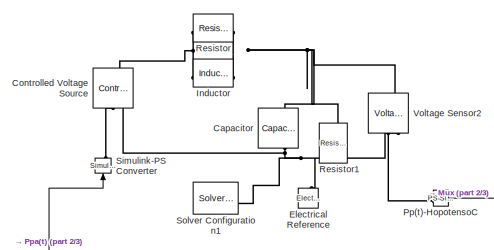
[diagram: root canvas - part 1/3, top center region]
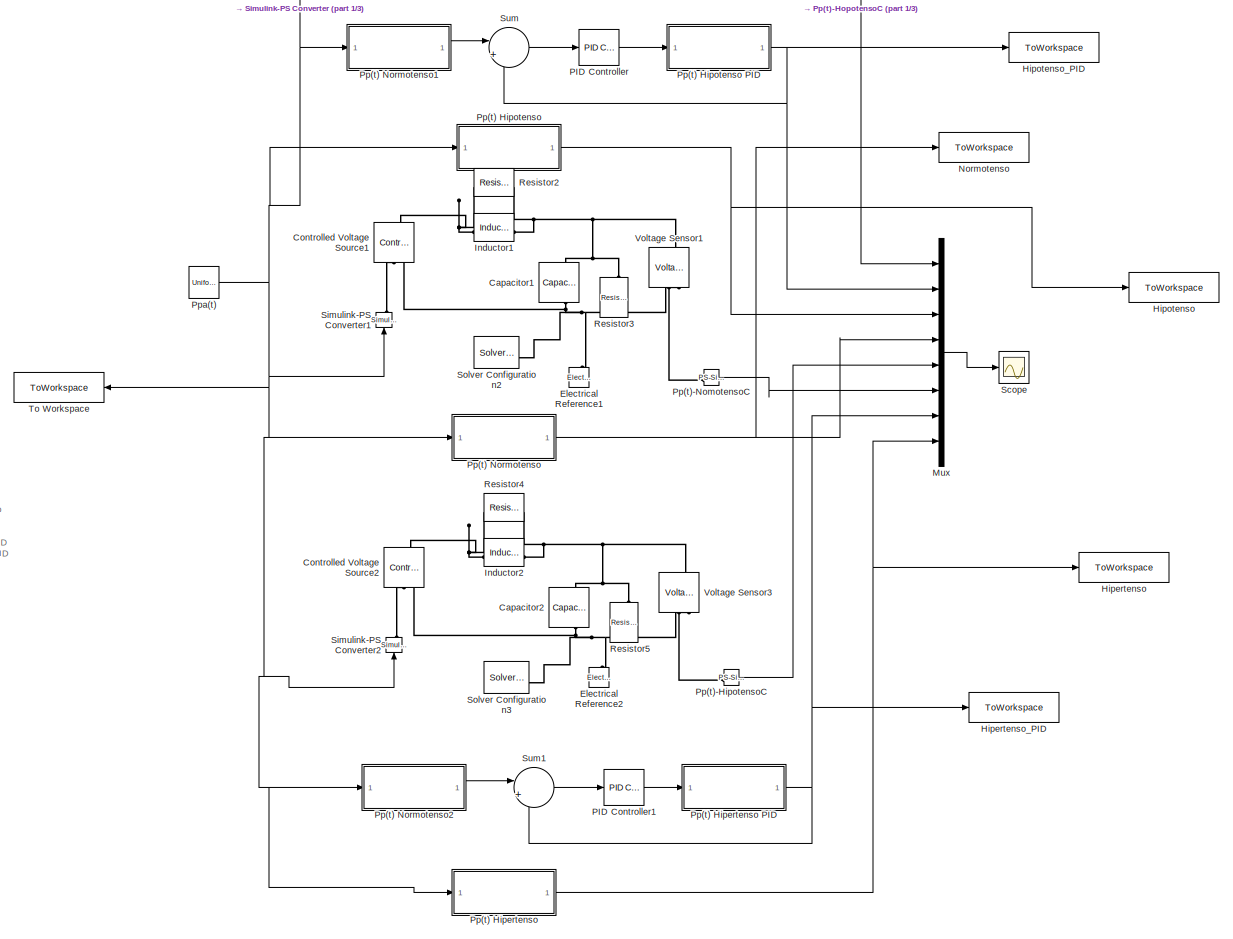
[diagram: root canvas - part 2/3, most of the canvas]
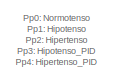
[diagram: root canvas - part 3/3, middle left region]
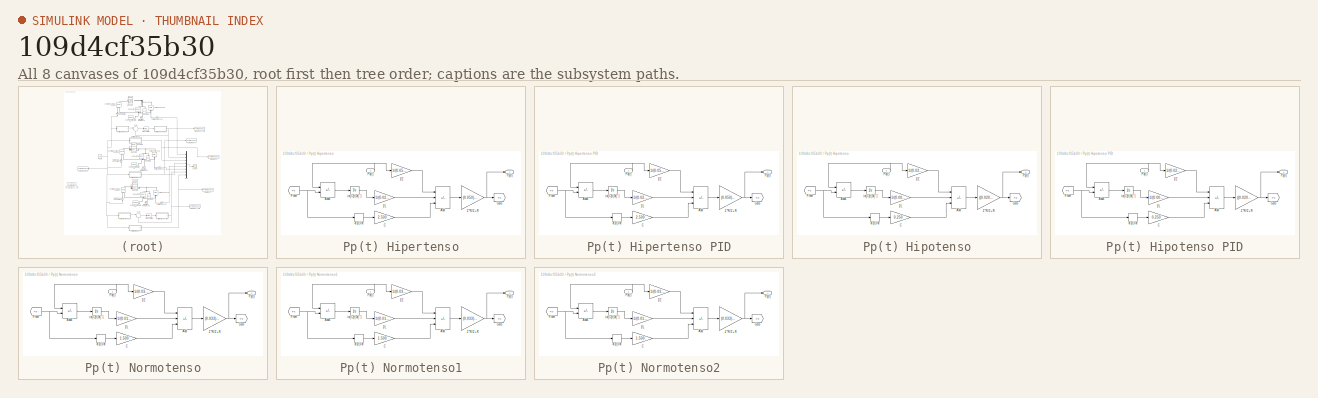
[diagram: thumbnail index - all 8 canvases of the model, root first then tree order]
MODEL slx_109d4cf35b30
KIND model
CONFIG AbsTol = auto
CONFIG EnableMultiTasking = off
CONFIG FixedStep = auto
CONFIG MaxStep = 1E-3
CONFIG MinStep = auto
CONFIG RelTol = 1e-3
CONFIG SampleTimeConstraint = Unconstrained
CONFIG SolverName = ode23t
CONFIG StartTime = 0.0
CONFIG StopTime = 10.0
BLOCK [ToWorkspace]  Hipotenso_PID
  FixptAsFi = on
  MaxDataPoints = inf
  SampleTime = -1
  VariableName = Pp3
BLOCK [Reference] Capacitor  REF=fl_lib/Electrical/Electrical Elements/Capacitor
  NameLocation = left
  SourceBlock = fl_lib/Electrical/Electrical Elements/Capacitor
  SourceType = Capacitor
BLOCK [Reference] Capacitor1  REF=fl_lib/Electrical/Electrical Elements/Capacitor
  NameLocation = left
  SourceBlock = fl_lib/Electrical/Electrical Elements/Capacitor
  SourceType = Capacitor
BLOCK [Reference] Capacitor2  REF=fl_lib/Electrical/Electrical Elements/Capacitor
  NameLocation = left
  SourceBlock = fl_lib/Electrical/Electrical Elements/Capacitor
  SourceType = Capacitor
BLOCK [Reference] Controlled Voltage Source  REF=fl_lib/Electrical/Electrical Sources/Controlled Voltage
Source
  NameLocation = right
  SourceBlock = fl_lib/Electrical/Electrical Sources/Controlled Voltage\nSource
  SourceType = Controlled Voltage\nSource
BLOCK [Reference] Controlled Voltage Source1  REF=fl_lib/Electrical/Electrical Sources/Controlled Voltage
Source
  NameLocation = right
  SourceBlock = fl_lib/Electrical/Electrical Sources/Controlled Voltage\nSource
  SourceType = Controlled Voltage\nSource
BLOCK [Reference] Controlled Voltage Source2  REF=fl_lib/Electrical/Electrical Sources/Controlled Voltage
Source
  NameLocation = right
  SourceBlock = fl_lib/Electrical/Electrical Sources/Controlled Voltage\nSource
  SourceType = Controlled Voltage\nSource
BLOCK [Reference] Electrical Reference  REF=fl_lib/Electrical/Electrical Elements/Electrical Reference
  NameLocation = right
  SourceBlock = fl_lib/Electrical/Electrical Elements/Electrical Reference
  SourceType = Electrical Reference
BLOCK [Reference] Electrical Reference1  REF=fl_lib/Electrical/Electrical Elements/Electrical Reference
  NameLocation = right
  SourceBlock = fl_lib/Electrical/Electrical Elements/Electrical Reference
  SourceType = Electrical Reference
BLOCK [Reference] Electrical Reference2  REF=fl_lib/Electrical/Electrical Elements/Electrical Reference
  NameLocation = right
  SourceBlock = fl_lib/Electrical/Electrical Elements/Electrical Reference
  SourceType = Electrical Reference
BLOCK [ToWorkspace] Hipertenso
  FixptAsFi = on
  MaxDataPoints = inf
  SampleTime = -1
  VariableName = Pp2
BLOCK [ToWorkspace] Hipertenso_PID
  FixptAsFi = on
  MaxDataPoints = inf
  SampleTime = -1
  VariableName = Pp4
BLOCK [ToWorkspace] Hipotenso
  FixptAsFi = on
  MaxDataPoints = inf
  SampleTime = -1
  VariableName = Pp1
BLOCK [Reference] Inductor  REF=fl_lib/Electrical/Electrical Elements/Inductor
  SourceBlock = fl_lib/Electrical/Electrical Elements/Inductor
  SourceType = Inductor
BLOCK [Reference] Inductor1  REF=fl_lib/Electrical/Electrical Elements/Inductor
  SourceBlock = fl_lib/Electrical/Electrical Elements/Inductor
  SourceType = Inductor
BLOCK [Reference] Inductor2  REF=fl_lib/Electrical/Electrical Elements/Inductor
  SourceBlock = fl_lib/Electrical/Electrical Elements/Inductor
  SourceType = Inductor
BLOCK [Mux] Mux
  DisplayOption = bar
  Inputs = 8
BLOCK [ToWorkspace] Normotenso
  FixptAsFi = on
  MaxDataPoints = inf
  SampleTime = -1
  VariableName = Pp0
BLOCK [Reference] PID Controller  REF=slpidlib/PID Controller
  LibrarySourceBlock = simulink/Continuous/PID Controller
  SourceBlock = slpidlib/PID Controller
  SourceType = PID 1dof
BLOCK [Reference] PID Controller1  REF=slpidlib/PID Controller
  LibrarySourceBlock = simulink/Continuous/PID Controller
  SourceBlock = slpidlib/PID Controller
  SourceType = PID 1dof
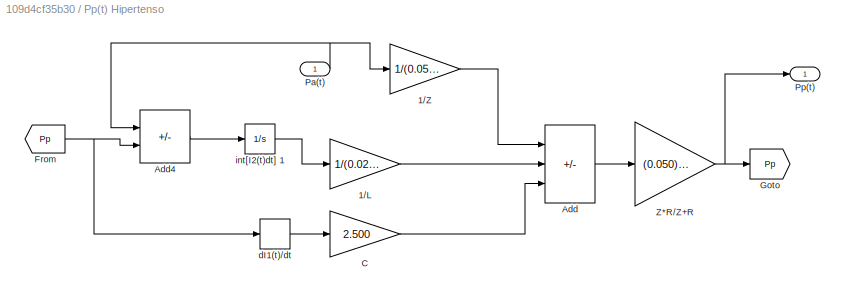
BLOCK [SubSystem] Pp(t) Hipertenso
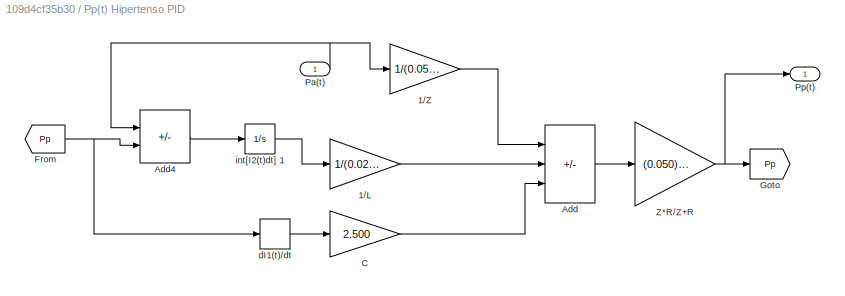
BLOCK [SubSystem] Pp(t) Hipertenso PID
BLOCK [Integrator] Pp(t) Hipertenso PID/  int[I2(t)dt] 1
BLOCK [Gain] Pp(t) Hipertenso PID/1//L
  Gain = 1/(0.020)
BLOCK [Gain] Pp(t) Hipertenso PID/1//Z
  Gain = 1/(0.050)
BLOCK [Sum] Pp(t) Hipertenso PID/Add
  IconShape = rectangular
  Inputs = ++-
BLOCK [Sum] Pp(t) Hipertenso PID/Add4
  IconShape = rectangular
  Inputs = +-
BLOCK [Gain] Pp(t) Hipertenso PID/C
  Gain = 2.500
BLOCK [From] Pp(t) Hipertenso PID/From
  GotoTag = Pp
BLOCK [Goto] Pp(t) Hipertenso PID/Goto
  GotoTag = Pp
BLOCK [Inport] Pp(t) Hipertenso PID/Pa(t)
BLOCK [Outport] Pp(t) Hipertenso PID/Pp(t)
BLOCK [Gain] Pp(t) Hipertenso PID/Z*R//Z+R
  Gain = (0.050)*(1.400)/(0.050+1.400)
BLOCK [Derivative] Pp(t) Hipertenso PID/dI1(t)//dt
BLOCK [Integrator] Pp(t) Hipertenso/  int[I2(t)dt] 1
BLOCK [Gain] Pp(t) Hipertenso/1//L
  Gain = 1/(0.020)
BLOCK [Gain] Pp(t) Hipertenso/1//Z
  Gain = 1/(0.050)
BLOCK [Sum] Pp(t) Hipertenso/Add
  IconShape = rectangular
  Inputs = ++-
BLOCK [Sum] Pp(t) Hipertenso/Add4
  IconShape = rectangular
  Inputs = +-
BLOCK [Gain] Pp(t) Hipertenso/C
  Gain = 2.500
BLOCK [From] Pp(t) Hipertenso/From
  GotoTag = Pp
BLOCK [Goto] Pp(t) Hipertenso/Goto
  GotoTag = Pp
BLOCK [Inport] Pp(t) Hipertenso/Pa(t)
BLOCK [Outport] Pp(t) Hipertenso/Pp(t)
BLOCK [Gain] Pp(t) Hipertenso/Z*R//Z+R
  Gain = (0.050)*(1.400)/(0.050+1.400)
BLOCK [Derivative] Pp(t) Hipertenso/dI1(t)//dt
BLOCK [SubSystem] Pp(t) Hipotenso
BLOCK [SubSystem] Pp(t) Hipotenso PID
BLOCK [Integrator] Pp(t) Hipotenso PID/  int[I2(t)dt] 1
BLOCK [Gain] Pp(t) Hipotenso PID/1//L
  Gain = 1/(0.005)
BLOCK [Gain] Pp(t) Hipotenso PID/1//Z
  Gain = 1/(0.020)
BLOCK [Sum] Pp(t) Hipotenso PID/Add
  IconShape = rectangular
  Inputs = ++-
BLOCK [Sum] Pp(t) Hipotenso PID/Add4
  IconShape = rectangular
  Inputs = +-
BLOCK [Gain] Pp(t) Hipotenso PID/C
  Gain = 0.250
BLOCK [From] Pp(t) Hipotenso PID/From
  GotoTag = Pp
BLOCK [Goto] Pp(t) Hipotenso PID/Goto
  GotoTag = Pp
BLOCK [Inport] Pp(t) Hipotenso PID/Pa(t)
BLOCK [Outport] Pp(t) Hipotenso PID/Pp(t)
BLOCK [Gain] Pp(t) Hipotenso PID/Z*R//Z+R
  Gain = ((0.020)*(0.600))/(0.020+0.600)
BLOCK [Derivative] Pp(t) Hipotenso PID/dI1(t)//dt
BLOCK [Integrator] Pp(t) Hipotenso/  int[I2(t)dt] 1
BLOCK [Gain] Pp(t) Hipotenso/1//L
  Gain = 1/(0.005)
BLOCK [Gain] Pp(t) Hipotenso/1//Z
  Gain = 1/(0.020)
BLOCK [Sum] Pp(t) Hipotenso/Add
  IconShape = rectangular
  Inputs = ++-
BLOCK [Sum] Pp(t) Hipotenso/Add4
  IconShape = rectangular
  Inputs = +-
BLOCK [Gain] Pp(t) Hipotenso/C
  Gain = 0.250
BLOCK [From] Pp(t) Hipotenso/From
  GotoTag = Pp
BLOCK [Goto] Pp(t) Hipotenso/Goto
  GotoTag = Pp
BLOCK [Inport] Pp(t) Hipotenso/Pa(t)
BLOCK [Outport] Pp(t) Hipotenso/Pp(t)
BLOCK [Gain] Pp(t) Hipotenso/Z*R//Z+R
  Gain = ((0.020)*(0.600))/(0.020+0.600)
BLOCK [Derivative] Pp(t) Hipotenso/dI1(t)//dt
BLOCK [SubSystem] Pp(t) Normotenso
BLOCK [Integrator] Pp(t) Normotenso/  int[I2(t)dt] 1
BLOCK [Gain] Pp(t) Normotenso/1//L
  Gain = 1/(0.010)
BLOCK [Gain] Pp(t) Normotenso/1//Z
  Gain = 1/(0.033)
BLOCK [Sum] Pp(t) Normotenso/Add
  IconShape = rectangular
  Inputs = ++-
BLOCK [Sum] Pp(t) Normotenso/Add4
  IconShape = rectangular
  Inputs = +-
BLOCK [Gain] Pp(t) Normotenso/C
  Gain = 1.500
BLOCK [From] Pp(t) Normotenso/From
  GotoTag = Pp
BLOCK [Goto] Pp(t) Normotenso/Goto
  GotoTag = Pp
BLOCK [Inport] Pp(t) Normotenso/Pa(t)
BLOCK [Outport] Pp(t) Normotenso/Pp(t)
BLOCK [Gain] Pp(t) Normotenso/Z*R//Z+R
  Gain = (0.033)*(0.950)/(0.033+0.950)
BLOCK [Derivative] Pp(t) Normotenso/dI1(t)//dt
BLOCK [SubSystem] Pp(t) Normotenso1
BLOCK [Integrator] Pp(t) Normotenso1/  int[I2(t)dt] 1
BLOCK [Gain] Pp(t) Normotenso1/1//L
  Gain = 1/(0.010)
BLOCK [Gain] Pp(t) Normotenso1/1//Z
  Gain = 1/(0.033)
BLOCK [Sum] Pp(t) Normotenso1/Add
  IconShape = rectangular
  Inputs = ++-
BLOCK [Sum] Pp(t) Normotenso1/Add4
  IconShape = rectangular
  Inputs = +-
BLOCK [Gain] Pp(t) Normotenso1/C
  Gain = 1.500
BLOCK [From] Pp(t) Normotenso1/From
  GotoTag = Pp
BLOCK [Goto] Pp(t) Normotenso1/Goto
  GotoTag = Pp
BLOCK [Inport] Pp(t) Normotenso1/Pa(t)
BLOCK [Outport] Pp(t) Normotenso1/Pp(t)
BLOCK [Gain] Pp(t) Normotenso1/Z*R//Z+R
  Gain = (0.033)*(0.950)/(0.033+0.950)
BLOCK [Derivative] Pp(t) Normotenso1/dI1(t)//dt
BLOCK [SubSystem] Pp(t) Normotenso2
BLOCK [Integrator] Pp(t) Normotenso2/  int[I2(t)dt] 1
BLOCK [Gain] Pp(t) Normotenso2/1//L
  Gain = 1/(0.010)
BLOCK [Gain] Pp(t) Normotenso2/1//Z
  Gain = 1/(0.033)
BLOCK [Sum] Pp(t) Normotenso2/Add
  IconShape = rectangular
  Inputs = ++-
BLOCK [Sum] Pp(t) Normotenso2/Add4
  IconShape = rectangular
  Inputs = +-
BLOCK [Gain] Pp(t) Normotenso2/C
  Gain = 1.500
BLOCK [From] Pp(t) Normotenso2/From
  GotoTag = Pp
BLOCK [Goto] Pp(t) Normotenso2/Goto
  GotoTag = Pp
BLOCK [Inport] Pp(t) Normotenso2/Pa(t)
BLOCK [Outport] Pp(t) Normotenso2/Pp(t)
BLOCK [Gain] Pp(t) Normotenso2/Z*R//Z+R
  Gain = (0.033)*(0.950)/(0.033+0.950)
BLOCK [Derivative] Pp(t) Normotenso2/dI1(t)//dt
BLOCK [Reference] Pp(t)-HipotensoC  REF=nesl_utility/PS-Simulink
Converter
  SourceBlock = nesl_utility/PS-Simulink\nConverter
  SourceType = PS-Simulink\nConverter
BLOCK [Reference] Pp(t)-HopotensoC  REF=nesl_utility/PS-Simulink
Converter
  SourceBlock = nesl_utility/PS-Simulink\nConverter
  SourceType = PS-Simulink\nConverter
BLOCK [Reference] Pp(t)-NomotensoC  REF=nesl_utility/PS-Simulink
Converter
  SourceBlock = nesl_utility/PS-Simulink\nConverter
  SourceType = PS-Simulink\nConverter
BLOCK [UniformRandomNumber] Ppa(t)
  Minimum = -0.2
  SampleTime = 0.5
  Seed = 106
BLOCK [Reference] Resistor  REF=fl_lib/Electrical/Electrical Elements/Resistor
  SourceBlock = fl_lib/Electrical/Electrical Elements/Resistor
  SourceType = Resistor
BLOCK [Reference] Resistor1  REF=fl_lib/Electrical/Electrical Elements/Resistor
  NameLocation = left
  SourceBlock = fl_lib/Electrical/Electrical Elements/Resistor
  SourceType = Resistor
BLOCK [Reference] Resistor2  REF=fl_lib/Electrical/Electrical Elements/Resistor
  SourceBlock = fl_lib/Electrical/Electrical Elements/Resistor
  SourceType = Resistor
BLOCK [Reference] Resistor3  REF=fl_lib/Electrical/Electrical Elements/Resistor
  NameLocation = left
  SourceBlock = fl_lib/Electrical/Electrical Elements/Resistor
  SourceType = Resistor
BLOCK [Reference] Resistor4  REF=fl_lib/Electrical/Electrical Elements/Resistor
  SourceBlock = fl_lib/Electrical/Electrical Elements/Resistor
  SourceType = Resistor
BLOCK [Reference] Resistor5  REF=fl_lib/Electrical/Electrical Elements/Resistor
  NameLocation = left
  SourceBlock = fl_lib/Electrical/Electrical Elements/Resistor
  SourceType = Resistor
BLOCK [Scope] Scope
  Floating = off
  NumInputPorts = 1
  ScopeSpecificationString = Simulink.scopes.TimeScopeBlockCfg('CurrentConfiguration', extmgr.ConfigurationSet(extmgr.Configuration('Core','General UI',true,'FigureColor',[1 1 1]),extmgr.Configuration('Core','Source UI',true),extmgr.Configuration('Sources','WiredSimulink',true),extmgr.Configuration('Visuals','Time Domain',true,'SerializedDisplays',{struct('MinYLimReal','-0.4','MaxYLimReal','1.125','YLabelReal','','MinYLimMag'...<+2623ch>
BLOCK [Reference] Simulink-PS Converter  REF=nesl_utility/Simulink-PS
Converter
  NameLocation = right
  SourceBlock = nesl_utility/Simulink-PS\nConverter
  SourceType = Simulink-PS\nConverter
BLOCK [Reference] Simulink-PS Converter1  REF=nesl_utility/Simulink-PS
Converter
  NameLocation = right
  SourceBlock = nesl_utility/Simulink-PS\nConverter
  SourceType = Simulink-PS\nConverter
BLOCK [Reference] Simulink-PS Converter2  REF=nesl_utility/Simulink-PS
Converter
  NameLocation = right
  SourceBlock = nesl_utility/Simulink-PS\nConverter
  SourceType = Simulink-PS\nConverter
BLOCK [Reference] Solver Configuration1  REF=nesl_utility/Solver
Configuration
  SourceBlock = nesl_utility/Solver\nConfiguration
  SourceType = Solver\nConfiguration
BLOCK [Reference] Solver Configuration2  REF=nesl_utility/Solver
Configuration
  SourceBlock = nesl_utility/Solver\nConfiguration
  SourceType = Solver\nConfiguration
BLOCK [Reference] Solver Configuration3  REF=nesl_utility/Solver
Configuration
  SourceBlock = nesl_utility/Solver\nConfiguration
  SourceType = Solver\nConfiguration
BLOCK [Sum] Sum
  Inputs = |+-
BLOCK [Sum] Sum1
  Inputs = |+-
BLOCK [ToWorkspace] To Workspace
  FixptAsFi = on
  MaxDataPoints = inf
  SampleTime = -1
  VariableName = Ppa
BLOCK [Reference] Voltage Sensor1  REF=fl_lib/Electrical/Electrical Sensors/Voltage Sensor
  NameLocation = right
  SourceBlock = fl_lib/Electrical/Electrical Sensors/Voltage Sensor
  SourceType = Voltage Sensor
BLOCK [Reference] Voltage Sensor2  REF=fl_lib/Electrical/Electrical Sensors/Voltage Sensor
  NameLocation = right
  SourceBlock = fl_lib/Electrical/Electrical Sensors/Voltage Sensor
  SourceType = Voltage Sensor
BLOCK [Reference] Voltage Sensor3  REF=fl_lib/Electrical/Electrical Sensors/Voltage Sensor
  NameLocation = right
  SourceBlock = fl_lib/Electrical/Electrical Sensors/Voltage Sensor
  SourceType = Voltage Sensor
ANNOTATION (root): Pp0: Normotenso Pp1: Hipotenso Pp2: Hipertenso Pp3: Hipotenso_PID Pp4: Hipertenso_PID
LINE Mux:1 -> Scope:1
LINE PID Controller1:1 -> Pp(t) Hipertenso PID:1
LINE PID Controller:1 -> Pp(t) Hipotenso PID:1
LINE Pp(t) Hipertenso PID/  int[I2(t)dt] 1:1 -> Pp(t) Hipertenso PID/1//L:1
LINE Pp(t) Hipertenso PID/1//L:1 -> Pp(t) Hipertenso PID/Add:2
LINE Pp(t) Hipertenso PID/1//Z:1 -> Pp(t) Hipertenso PID/Add:1
LINE Pp(t) Hipertenso PID/Add4:1 -> Pp(t) Hipertenso PID/  int[I2(t)dt] 1:1
LINE Pp(t) Hipertenso PID/Add:1 -> Pp(t) Hipertenso PID/Z*R//Z+R:1
LINE Pp(t) Hipertenso PID/C:1 -> Pp(t) Hipertenso PID/Add:3
NET Pp(t) Hipertenso PID/From:1 -> Pp(t) Hipertenso PID/Add4:2, Pp(t) Hipertenso PID/dI1(t)//dt:1
NET Pp(t) Hipertenso PID/Pa(t):1 -> Pp(t) Hipertenso PID/1//Z:1, Pp(t) Hipertenso PID/Add4:1
NET Pp(t) Hipertenso PID/Z*R//Z+R:1 -> Pp(t) Hipertenso PID/Goto:1, Pp(t) Hipertenso PID/Pp(t):1
LINE Pp(t) Hipertenso PID/dI1(t)//dt:1 -> Pp(t) Hipertenso PID/C:1
NET Pp(t) Hipertenso PID:1 -> Hipertenso_PID:1, Mux:7, Sum1:2
LINE Pp(t) Hipertenso/  int[I2(t)dt] 1:1 -> Pp(t) Hipertenso/1//L:1
LINE Pp(t) Hipertenso/1//L:1 -> Pp(t) Hipertenso/Add:2
LINE Pp(t) Hipertenso/1//Z:1 -> Pp(t) Hipertenso/Add:1
LINE Pp(t) Hipertenso/Add4:1 -> Pp(t) Hipertenso/  int[I2(t)dt] 1:1
LINE Pp(t) Hipertenso/Add:1 -> Pp(t) Hipertenso/Z*R//Z+R:1
LINE Pp(t) Hipertenso/C:1 -> Pp(t) Hipertenso/Add:3
NET Pp(t) Hipertenso/From:1 -> Pp(t) Hipertenso/Add4:2, Pp(t) Hipertenso/dI1(t)//dt:1
NET Pp(t) Hipertenso/Pa(t):1 -> Pp(t) Hipertenso/1//Z:1, Pp(t) Hipertenso/Add4:1
NET Pp(t) Hipertenso/Z*R//Z+R:1 -> Pp(t) Hipertenso/Goto:1, Pp(t) Hipertenso/Pp(t):1
LINE Pp(t) Hipertenso/dI1(t)//dt:1 -> Pp(t) Hipertenso/C:1
NET Pp(t) Hipertenso:1 -> Hipertenso:1, Mux:8
LINE Pp(t) Hipotenso PID/  int[I2(t)dt] 1:1 -> Pp(t) Hipotenso PID/1//L:1
LINE Pp(t) Hipotenso PID/1//L:1 -> Pp(t) Hipotenso PID/Add:2
LINE Pp(t) Hipotenso PID/1//Z:1 -> Pp(t) Hipotenso PID/Add:1
LINE Pp(t) Hipotenso PID/Add4:1 -> Pp(t) Hipotenso PID/  int[I2(t)dt] 1:1
LINE Pp(t) Hipotenso PID/Add:1 -> Pp(t) Hipotenso PID/Z*R//Z+R:1
LINE Pp(t) Hipotenso PID/C:1 -> Pp(t) Hipotenso PID/Add:3
NET Pp(t) Hipotenso PID/From:1 -> Pp(t) Hipotenso PID/Add4:2, Pp(t) Hipotenso PID/dI1(t)//dt:1
NET Pp(t) Hipotenso PID/Pa(t):1 -> Pp(t) Hipotenso PID/1//Z:1, Pp(t) Hipotenso PID/Add4:1
NET Pp(t) Hipotenso PID/Z*R//Z+R:1 -> Pp(t) Hipotenso PID/Goto:1, Pp(t) Hipotenso PID/Pp(t):1
LINE Pp(t) Hipotenso PID/dI1(t)//dt:1 -> Pp(t) Hipotenso PID/C:1
NET Pp(t) Hipotenso PID:1 ->  Hipotenso_PID:1, Mux:2, Sum:2
LINE Pp(t) Hipotenso/  int[I2(t)dt] 1:1 -> Pp(t) Hipotenso/1//L:1
LINE Pp(t) Hipotenso/1//L:1 -> Pp(t) Hipotenso/Add:2
LINE Pp(t) Hipotenso/1//Z:1 -> Pp(t) Hipotenso/Add:1
LINE Pp(t) Hipotenso/Add4:1 -> Pp(t) Hipotenso/  int[I2(t)dt] 1:1
LINE Pp(t) Hipotenso/Add:1 -> Pp(t) Hipotenso/Z*R//Z+R:1
LINE Pp(t) Hipotenso/C:1 -> Pp(t) Hipotenso/Add:3
NET Pp(t) Hipotenso/From:1 -> Pp(t) Hipotenso/Add4:2, Pp(t) Hipotenso/dI1(t)//dt:1
NET Pp(t) Hipotenso/Pa(t):1 -> Pp(t) Hipotenso/1//Z:1, Pp(t) Hipotenso/Add4:1
NET Pp(t) Hipotenso/Z*R//Z+R:1 -> Pp(t) Hipotenso/Goto:1, Pp(t) Hipotenso/Pp(t):1
LINE Pp(t) Hipotenso/dI1(t)//dt:1 -> Pp(t) Hipotenso/C:1
NET Pp(t) Hipotenso:1 -> Hipotenso:1, Mux:3
LINE Pp(t) Normotenso/  int[I2(t)dt] 1:1 -> Pp(t) Normotenso/1//L:1
LINE Pp(t) Normotenso/1//L:1 -> Pp(t) Normotenso/Add:2
LINE Pp(t) Normotenso/1//Z:1 -> Pp(t) Normotenso/Add:1
LINE Pp(t) Normotenso/Add4:1 -> Pp(t) Normotenso/  int[I2(t)dt] 1:1
LINE Pp(t) Normotenso/Add:1 -> Pp(t) Normotenso/Z*R//Z+R:1
LINE Pp(t) Normotenso/C:1 -> Pp(t) Normotenso/Add:3
NET Pp(t) Normotenso/From:1 -> Pp(t) Normotenso/Add4:2, Pp(t) Normotenso/dI1(t)//dt:1
NET Pp(t) Normotenso/Pa(t):1 -> Pp(t) Normotenso/1//Z:1, Pp(t) Normotenso/Add4:1
NET Pp(t) Normotenso/Z*R//Z+R:1 -> Pp(t) Normotenso/Goto:1, Pp(t) Normotenso/Pp(t):1
LINE Pp(t) Normotenso/dI1(t)//dt:1 -> Pp(t) Normotenso/C:1
LINE Pp(t) Normotenso1/  int[I2(t)dt] 1:1 -> Pp(t) Normotenso1/1//L:1
LINE Pp(t) Normotenso1/1//L:1 -> Pp(t) Normotenso1/Add:2
LINE Pp(t) Normotenso1/1//Z:1 -> Pp(t) Normotenso1/Add:1
LINE Pp(t) Normotenso1/Add4:1 -> Pp(t) Normotenso1/  int[I2(t)dt] 1:1
LINE Pp(t) Normotenso1/Add:1 -> Pp(t) Normotenso1/Z*R//Z+R:1
LINE Pp(t) Normotenso1/C:1 -> Pp(t) Normotenso1/Add:3
NET Pp(t) Normotenso1/From:1 -> Pp(t) Normotenso1/Add4:2, Pp(t) Normotenso1/dI1(t)//dt:1
NET Pp(t) Normotenso1/Pa(t):1 -> Pp(t) Normotenso1/1//Z:1, Pp(t) Normotenso1/Add4:1
NET Pp(t) Normotenso1/Z*R//Z+R:1 -> Pp(t) Normotenso1/Goto:1, Pp(t) Normotenso1/Pp(t):1
LINE Pp(t) Normotenso1/dI1(t)//dt:1 -> Pp(t) Normotenso1/C:1
LINE Pp(t) Normotenso1:1 -> Sum:1
LINE Pp(t) Normotenso2/  int[I2(t)dt] 1:1 -> Pp(t) Normotenso2/1//L:1
LINE Pp(t) Normotenso2/1//L:1 -> Pp(t) Normotenso2/Add:2
LINE Pp(t) Normotenso2/1//Z:1 -> Pp(t) Normotenso2/Add:1
LINE Pp(t) Normotenso2/Add4:1 -> Pp(t) Normotenso2/  int[I2(t)dt] 1:1
LINE Pp(t) Normotenso2/Add:1 -> Pp(t) Normotenso2/Z*R//Z+R:1
LINE Pp(t) Normotenso2/C:1 -> Pp(t) Normotenso2/Add:3
NET Pp(t) Normotenso2/From:1 -> Pp(t) Normotenso2/Add4:2, Pp(t) Normotenso2/dI1(t)//dt:1
NET Pp(t) Normotenso2/Pa(t):1 -> Pp(t) Normotenso2/1//Z:1, Pp(t) Normotenso2/Add4:1
NET Pp(t) Normotenso2/Z*R//Z+R:1 -> Pp(t) Normotenso2/Goto:1, Pp(t) Normotenso2/Pp(t):1
LINE Pp(t) Normotenso2/dI1(t)//dt:1 -> Pp(t) Normotenso2/C:1
LINE Pp(t) Normotenso2:1 -> Sum1:1
NET Pp(t) Normotenso:1 -> Mux:4, Normotenso:1
LINE Pp(t)-HipotensoC:1 -> Mux:5
LINE Pp(t)-HopotensoC:1 -> Mux:1
LINE Pp(t)-NomotensoC:1 -> Mux:6
NET Ppa(t):1 -> Pp(t) Hipertenso:1, Pp(t) Hipotenso:1, Pp(t) Normotenso1:1, Pp(t) Normotenso2:1, Pp(t) Normotenso:1, Simulink-PS Converter1:1, Simulink-PS Converter2:1, Simulink-PS Converter:1, To Workspace:1
LINE Sum1:1 -> PID Controller1:1
LINE Sum:1 -> PID Controller:1
PNET net1: Capacitor1:LConn1 -- Inductor1:RConn1 -- Resistor2:RConn1 -- Resistor3:LConn1 -- Voltage Sensor1:LConn1
PNET net2: Capacitor1:RConn1 -- Controlled Voltage Source1:RConn2 -- Electrical Reference1:LConn1 -- Resistor3:RConn1 -- Solver Configuration2:RConn1 -- Voltage Sensor1:RConn2
PNET net3: Capacitor2:LConn1 -- Inductor2:RConn1 -- Resistor4:RConn1 -- Resistor5:LConn1 -- Voltage Sensor3:LConn1
PNET net4: Capacitor2:RConn1 -- Controlled Voltage Source2:RConn2 -- Electrical Reference2:LConn1 -- Resistor5:RConn1 -- Solver Configuration3:RConn1 -- Voltage Sensor3:RConn2
PNET net5: Capacitor:LConn1 -- Inductor:RConn1 -- Resistor1:LConn1 -- Resistor:RConn1 -- Voltage Sensor2:LConn1
PNET net6: Capacitor:RConn1 -- Controlled Voltage Source:RConn2 -- Electrical Reference:LConn1 -- Resistor1:RConn1 -- Solver Configuration1:RConn1 -- Voltage Sensor2:RConn2
PNET net7: Controlled Voltage Source1:LConn1 -- Inductor1:LConn1 -- Resistor2:LConn1
PLINE Controlled Voltage Source1:RConn1 -- Simulink-PS Converter1:RConn1
PNET net8: Controlled Voltage Source2:LConn1 -- Inductor2:LConn1 -- Resistor4:LConn1
PLINE Controlled Voltage Source2:RConn1 -- Simulink-PS Converter2:RConn1
PNET net9: Controlled Voltage Source:LConn1 -- Inductor:LConn1 -- Resistor:LConn1
PLINE Controlled Voltage Source:RConn1 -- Simulink-PS Converter:RConn1
PLINE Pp(t)-HipotensoC:LConn1 -- Voltage Sensor3:RConn1
PLINE Pp(t)-HopotensoC:LConn1 -- Voltage Sensor2:RConn1
PLINE Pp(t)-NomotensoC:LConn1 -- Voltage Sensor1:RConn1
note: NET lines group one-source signal fan-out (src -> all destinations, sorted); 1:1 wires keep LINE; PNET lines group multi-terminal physical nets as a canonical sorted terminal list (undirected conserving connections); 2-terminal nets keep the pairwise PLINE form
